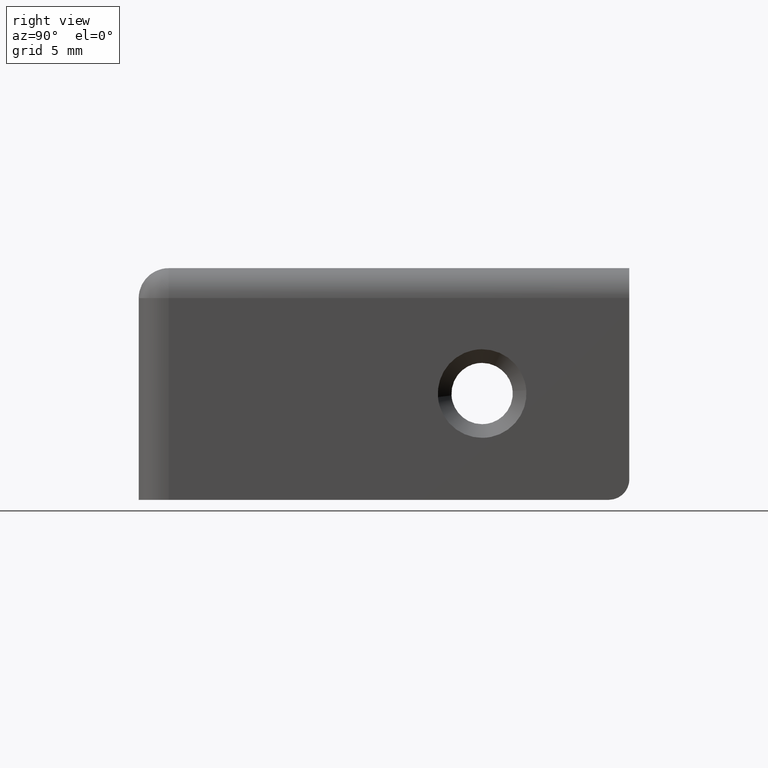
[diagram: clean part render]
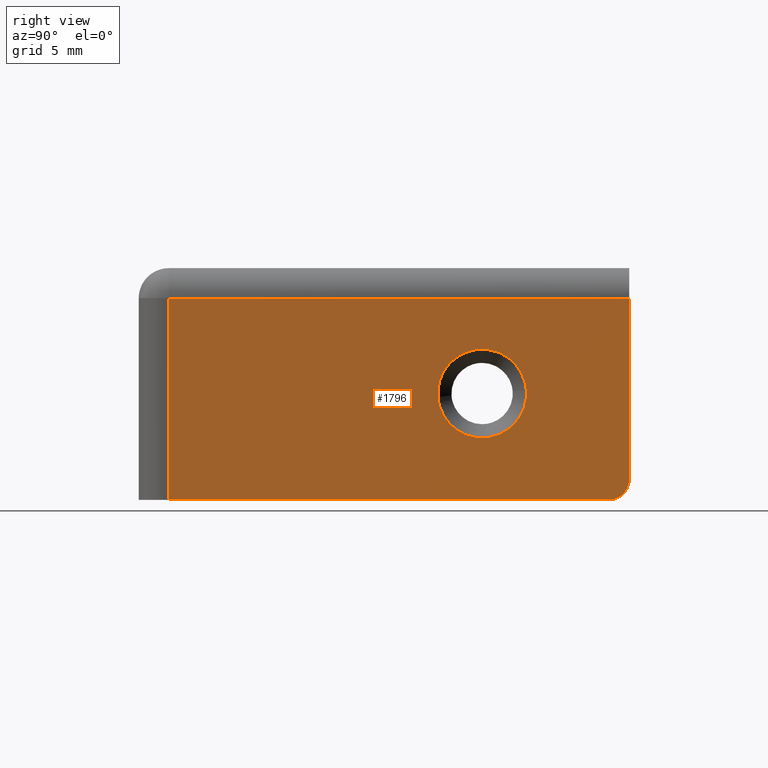
[diagram: same view with one face highlighted and labeled with its STEP entity id]
A machine part, right view. The second image highlights one B-rep face of the part: STEP entity #1796.
In plain terms, the highlighted face is a freeform B-spline surface patch.
Its self-contained STEP definition (entity closure, byte-faithful):
#592=CARTESIAN_POINT('',(6.211096E-012,28.439981334635110,8.054992061163386));
#593=VERTEX_POINT('',#592);
#599=CARTESIAN_POINT('',(4.032016E-015,25.199999999999999,11.049999999999899));
#600=VERTEX_POINT('',#599);
#601=CARTESIAN_POINT('',(4.032016E-015,25.199999999999999,11.049999999999899));
#602=CARTESIAN_POINT('',(4.032016E-015,28.204269097800815,11.049999999999903));
#603=CARTESIAN_POINT('',(6.211096E-012,28.439981334635110,8.054992061163386));
#611=(BOUNDED_CURVE()B_SPLINE_CURVE(2,(#601,#602,#603),.UNSPECIFIED.,.F.,.U.)B_SPLINE_CURVE_WITH_KNOTS((3,3),(0.0,0.236331300627740),.UNSPECIFIED.)CURVE()GEOMETRIC_REPRESENTATION_ITEM()RATIONAL_B_SPLINE_CURVE((1.0,0.723120658611086,0.969723356161325))REPRESENTATION_ITEM(''));
#612=EDGE_CURVE('',#600,#593,#611,.T.);
#614=CARTESIAN_POINT('',(6.210687E-012,21.960018665364888,7.545007938836411));
#615=VERTEX_POINT('',#614);
#616=CARTESIAN_POINT('',(6.210687E-012,21.960018665364881,7.545007938836411));
#617=CARTESIAN_POINT('',(4.032016E-015,21.949999999999996,7.672307152177250));
#618=CARTESIAN_POINT('',(4.032016E-015,21.949999999999999,7.799999999999900));
#619=CARTESIAN_POINT('',(4.032016E-015,21.950000000000003,11.049999999999899));
#620=CARTESIAN_POINT('',(4.032016E-015,25.199999999999999,11.049999999999899));
#628=(BOUNDED_CURVE()B_SPLINE_CURVE(2,(#616,#617,#618,#619,#620),.UNSPECIFIED.,.F.,.U.)B_SPLINE_CURVE_WITH_KNOTS((3,2,3),(0.736331300627740,0.750000000000000,1.0),.UNSPECIFIED.)CURVE()GEOMETRIC_REPRESENTATION_ITEM()RATIONAL_B_SPLINE_CURVE((0.969723356161325,0.983986122575462,1.0,0.707106781186547,1.0))REPRESENTATION_ITEM(''));
#629=EDGE_CURVE('',#615,#600,#628,.T.);
#666=CARTESIAN_POINT('',(4.032016E-015,25.199999999999999,4.549999999999900));
#667=VERTEX_POINT('',#666);
#668=CARTESIAN_POINT('',(4.032016E-015,25.199999999999999,4.549999999999900));
#669=CARTESIAN_POINT('',(4.032016E-015,22.195730902199173,4.549999999999899));
#670=CARTESIAN_POINT('',(6.210687E-012,21.960018665364888,7.545007938836411));
#678=(BOUNDED_CURVE()B_SPLINE_CURVE(2,(#668,#669,#670),.UNSPECIFIED.,.F.,.U.)B_SPLINE_CURVE_WITH_KNOTS((3,3),(0.500000000000000,0.736331300627741),.UNSPECIFIED.)CURVE()GEOMETRIC_REPRESENTATION_ITEM()RATIONAL_B_SPLINE_CURVE((1.0,0.723120658611085,0.969723356161327))REPRESENTATION_ITEM(''));
#679=EDGE_CURVE('',#667,#615,#678,.T.);
#681=CARTESIAN_POINT('',(6.211096E-012,28.439981334635117,8.054992061163386));
#682=CARTESIAN_POINT('',(4.032016E-015,28.449999999999996,7.927692847822550));
#683=CARTESIAN_POINT('',(4.032016E-015,28.449999999999999,7.799999999999900));
#684=CARTESIAN_POINT('',(4.032016E-015,28.450000000000003,4.549999999999900));
#685=CARTESIAN_POINT('',(4.032016E-015,25.199999999999999,4.549999999999900));
#693=(BOUNDED_CURVE()B_SPLINE_CURVE(2,(#681,#682,#683,#684,#685),.UNSPECIFIED.,.F.,.U.)B_SPLINE_CURVE_WITH_KNOTS((3,2,3),(0.236331300627740,0.250000000000000,0.500000000000000),.UNSPECIFIED.)CURVE()GEOMETRIC_REPRESENTATION_ITEM()RATIONAL_B_SPLINE_CURVE((0.969723356161325,0.983986122575462,1.0,0.707106781186547,1.0))REPRESENTATION_ITEM(''));
#694=EDGE_CURVE('',#593,#667,#693,.T.);
#1042=CARTESIAN_POINT('',(0.0,2.200000000000000,0.0));
#1043=VERTEX_POINT('',#1042);
#1059=CARTESIAN_POINT('',(0.0,2.200000000000000,14.800000000000001));
#1060=VERTEX_POINT('',#1059);
#1061=CARTESIAN_POINT('',(0.0,2.200000000000000,14.800000000000001));
#1062=CARTESIAN_POINT('',(0.0,2.200000000000000,0.0));
#1063=QUASI_UNIFORM_CURVE('',1,(#1061,#1062),.UNSPECIFIED.,.F.,.U.);
#1064=EDGE_CURVE('',#1060,#1043,#1063,.T.);
#1161=CARTESIAN_POINT('',(0.0,36.0,14.800000000000001));
#1162=VERTEX_POINT('',#1161);
#1182=CARTESIAN_POINT('',(0.0,36.0,14.800000000000001));
#1183=CARTESIAN_POINT('',(0.0,2.200000000000000,14.800000000000001));
#1184=QUASI_UNIFORM_CURVE('',1,(#1182,#1183),.UNSPECIFIED.,.F.,.U.);
#1185=EDGE_CURVE('',#1162,#1060,#1184,.T.);
#1517=CARTESIAN_POINT('',(0.0,34.500000000000000,2.220446E-015));
#1518=VERTEX_POINT('',#1517);
#1519=CARTESIAN_POINT('',(0.0,36.0,1.500000000000000));
#1520=VERTEX_POINT('',#1519);
#1521=CARTESIAN_POINT('',(0.0,34.500000000000000,0.0));
#1522=CARTESIAN_POINT('',(0.0,36.000000000000014,0.0));
#1523=CARTESIAN_POINT('',(0.0,36.000000000000007,1.500000000000000));
#1531=(BOUNDED_CURVE()B_SPLINE_CURVE(2,(#1521,#1522,#1523),.UNSPECIFIED.,.F.,.U.)CURVE()GEOMETRIC_REPRESENTATION_ITEM()QUASI_UNIFORM_CURVE()RATIONAL_B_SPLINE_CURVE((1.0,0.707106781186548,1.0))REPRESENTATION_ITEM(''));
#1532=EDGE_CURVE('',#1518,#1520,#1531,.T.);
#1575=CARTESIAN_POINT('',(0.0,36.0,14.800000000000001));
#1576=CARTESIAN_POINT('',(0.0,36.0,1.500000000000000));
#1577=QUASI_UNIFORM_CURVE('',1,(#1575,#1576),.UNSPECIFIED.,.F.,.U.);
#1578=EDGE_CURVE('',#1162,#1520,#1577,.T.);
#1601=CARTESIAN_POINT('',(0.0,34.500000000000000,2.220446E-015));
#1602=CARTESIAN_POINT('',(0.0,2.200000000000000,0.0));
#1603=QUASI_UNIFORM_CURVE('',1,(#1601,#1602),.UNSPECIFIED.,.F.,.U.);
#1604=EDGE_CURVE('',#1518,#1043,#1603,.T.);
#1778=CARTESIAN_POINT('',(0.0,0.511690065510962,15.539260249178350));
#1779=CARTESIAN_POINT('',(0.0,0.511690065510962,-0.739260381500661));
#1780=CARTESIAN_POINT('',(0.0,37.688310841075683,15.539260249178350));
#1781=CARTESIAN_POINT('',(0.0,37.688310841075683,-0.739260381500661));
#1782=B_SPLINE_SURFACE_WITH_KNOTS('',1,1,((#1778,#1780),(#1779,#1781)),.UNSPECIFIED.,.F.,.F.,.U.,(2,2),(2,2),(0.0,16.278520630679012),(0.0,37.176620775564722),.UNSPECIFIED.);
#1783=ORIENTED_EDGE('',*,*,#1185,.T.);
#1784=ORIENTED_EDGE('',*,*,#1064,.T.);
#1785=ORIENTED_EDGE('',*,*,#1604,.F.);
#1786=ORIENTED_EDGE('',*,*,#1532,.T.);
#1787=ORIENTED_EDGE('',*,*,#1578,.F.);
#1788=EDGE_LOOP('',(#1783,#1784,#1785,#1786,#1787));
#1789=FACE_OUTER_BOUND('',#1788,.T.);
#1790=ORIENTED_EDGE('',*,*,#679,.T.);
#1791=ORIENTED_EDGE('',*,*,#629,.T.);
#1792=ORIENTED_EDGE('',*,*,#612,.T.);
#1793=ORIENTED_EDGE('',*,*,#694,.T.);
#1794=EDGE_LOOP('',(#1790,#1791,#1792,#1793));
#1795=FACE_BOUND('',#1794,.T.);
#1796=ADVANCED_FACE('',(#1789,#1795),#1782,.T.);